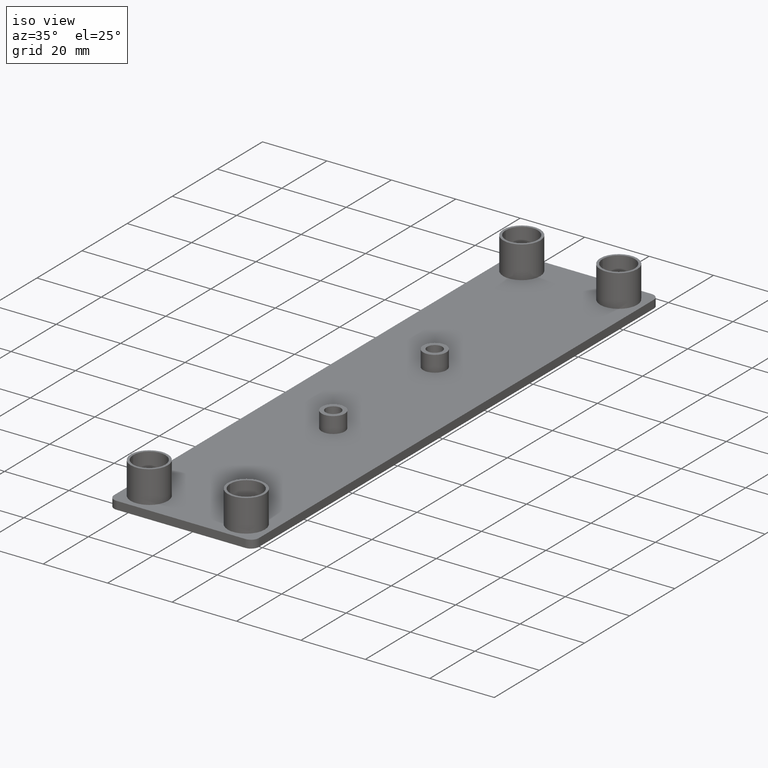
[diagram: clean part render]
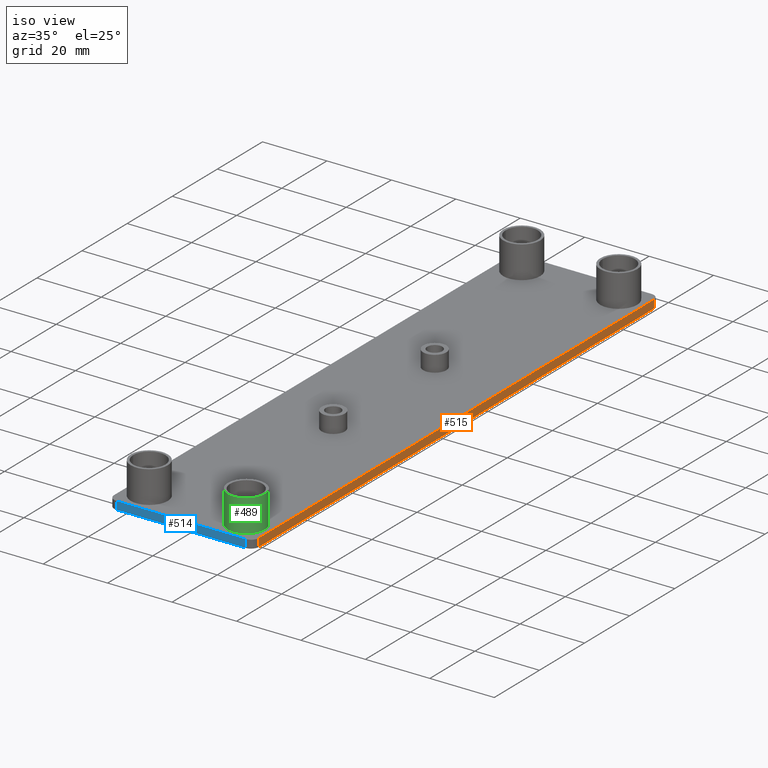
[diagram: same view with three faces highlighted in distinct colors, each labeled with its STEP entity id]
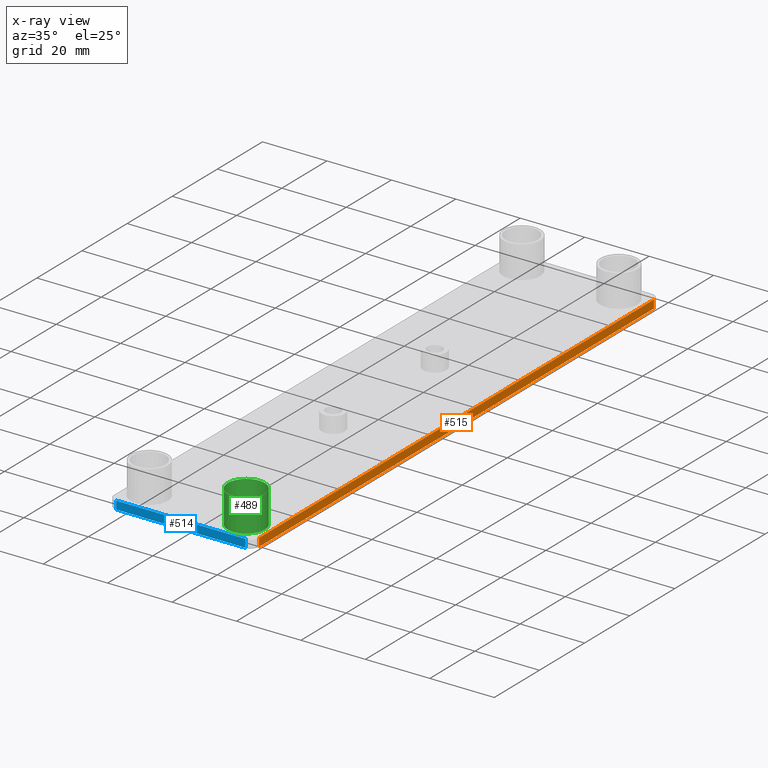
[diagram: x-ray of the same camera — body ghosted, the three highlighted faces saturated]
A machine part, iso view with three faces highlighted in distinct colors.
The next image is the same camera in x-ray (body ghosted, the three faces saturated) — at least one of them is partly hidden behind the body in this view.
Their STEP definitions:

[orange] entity #515 — the highlighted planar face has unit normal (-1, 0, 0).
#38=LINE('',#858,#66);
#47=LINE('',#888,#75);
#49=LINE('',#892,#77);
#52=LINE('',#897,#80);
#66=VECTOR('',#720,175.00000099928);
#75=VECTOR('',#745,175.00000099928);
#77=VECTOR('',#751,2.5);
#80=VECTOR('',#758,2.5);
#130=FACE_OUTER_BOUND('',#176,.T.);
#176=EDGE_LOOP('',(#422,#423,#424,#425));
#235=VERTEX_POINT('',#855);
#236=VERTEX_POINT('',#857);
#248=VERTEX_POINT('',#885);
#249=VERTEX_POINT('',#887);
#287=EDGE_CURVE('',#236,#235,#38,.T.);
#302=EDGE_CURVE('',#248,#249,#47,.T.);
#305=EDGE_CURVE('',#248,#236,#49,.T.);
#308=EDGE_CURVE('',#249,#235,#52,.T.);
#422=ORIENTED_EDGE('',*,*,#302,.F.);
#423=ORIENTED_EDGE('',*,*,#305,.T.);
#424=ORIENTED_EDGE('',*,*,#287,.T.);
#425=ORIENTED_EDGE('',*,*,#308,.F.);
#446=PLANE('',#604);
#515=ADVANCED_FACE('',(#130),#446,.F.);
#604=AXIS2_PLACEMENT_3D('',#901,#764,#765);
#720=DIRECTION('',(0.,1.,0.));
#745=DIRECTION('',(0.,1.,0.));
#751=DIRECTION('',(0.,0.,-1.));
#758=DIRECTION('',(0.,0.,-1.));
#764=DIRECTION('center_axis',(-1.,0.,0.));
#765=DIRECTION('ref_axis',(0.,0.,1.));
#855=CARTESIAN_POINT('',(22.4999799999136,109.99999999955,-2.5));
#857=CARTESIAN_POINT('',(22.4999799999136,-65.0000009997302,-2.5));
#858=CARTESIAN_POINT('',(22.4999799999136,-65.0000009997302,-2.5));
#885=CARTESIAN_POINT('',(22.4999799999136,-65.0000009997302,0.));
#887=CARTESIAN_POINT('',(22.4999799999136,109.99999999955,0.));
#888=CARTESIAN_POINT('',(22.4999799999136,-65.0000009997302,0.));
#892=CARTESIAN_POINT('',(22.4999799999136,-65.0000009997302,0.));
#897=CARTESIAN_POINT('',(22.4999799999136,109.99999999955,0.));
#901=CARTESIAN_POINT('Origin',(22.4999799999136,-67.5000009997302,0.));

[blue] entity #514 — the highlighted planar face has unit normal (0, 1, 0).
#39=LINE('',#862,#67);
#43=LINE('',#875,#71);
#46=LINE('',#884,#74);
#48=LINE('',#891,#76);
#67=VECTOR('',#723,39.9999539998198);
#71=VECTOR('',#735,2.5);
#74=VECTOR('',#742,39.9999539998198);
#76=VECTOR('',#750,2.5);
#129=FACE_OUTER_BOUND('',#175,.T.);
#175=EDGE_LOOP('',(#418,#419,#420,#421));
#237=VERTEX_POINT('',#859);
#238=VERTEX_POINT('',#861);
#242=VERTEX_POINT('',#871);
#247=VERTEX_POINT('',#883);
#289=EDGE_CURVE('',#238,#237,#39,.T.);
#296=EDGE_CURVE('',#242,#238,#43,.T.);
#300=EDGE_CURVE('',#242,#247,#46,.T.);
#304=EDGE_CURVE('',#247,#237,#48,.T.);
#418=ORIENTED_EDGE('',*,*,#300,.F.);
#419=ORIENTED_EDGE('',*,*,#296,.T.);
#420=ORIENTED_EDGE('',*,*,#289,.T.);
#421=ORIENTED_EDGE('',*,*,#304,.F.);
#445=PLANE('',#603);
#514=ADVANCED_FACE('',(#129),#445,.F.);
#603=AXIS2_PLACEMENT_3D('',#900,#762,#763);
#723=DIRECTION('',(1.,0.,0.));
#735=DIRECTION('',(0.,0.,-1.));
#742=DIRECTION('',(1.,0.,0.));
#750=DIRECTION('',(0.,0.,-1.));
#762=DIRECTION('center_axis',(0.,1.,0.));
#763=DIRECTION('ref_axis',(0.,0.,1.));
#859=CARTESIAN_POINT('',(19.9999799999136,-67.5000009997302,-2.5));
#861=CARTESIAN_POINT('',(-19.9999739999062,-67.5000009997302,-2.5));
#862=CARTESIAN_POINT('',(-19.9999739999062,-67.5000009997302,-2.5));
#871=CARTESIAN_POINT('',(-19.9999739999062,-67.5000009997302,0.));
#875=CARTESIAN_POINT('',(-19.9999739999062,-67.5000009997302,0.));
#883=CARTESIAN_POINT('',(19.9999799999136,-67.5000009997302,0.));
#884=CARTESIAN_POINT('',(-19.9999739999062,-67.5000009997302,0.));
#891=CARTESIAN_POINT('',(19.9999799999136,-67.5000009997302,0.));
#900=CARTESIAN_POINT('Origin',(-22.4999739999062,-67.5000009997302,0.));

[green] entity #489 — the highlighted cylindrical surface (bore or boss wall) has radius 5.75 mm, axis along (0, 0, 1).
#26=LINE('',#791,#54);
#54=VECTOR('',#636,5.749999999977);
#82=CYLINDRICAL_SURFACE('',#552,5.749999999977);
#104=FACE_OUTER_BOUND('',#138,.T.);
#138=EDGE_LOOP('',(#316,#317,#318,#319));
#184=CIRCLE('',#553,5.749999999977);
#185=CIRCLE('',#554,5.749999999977);
#216=VERTEX_POINT('',#788);
#217=VERTEX_POINT('',#790);
#256=EDGE_CURVE('',#216,#216,#184,.T.);
#257=EDGE_CURVE('',#216,#217,#26,.T.);
#258=EDGE_CURVE('',#217,#217,#185,.T.);
#316=ORIENTED_EDGE('',*,*,#256,.F.);
#317=ORIENTED_EDGE('',*,*,#257,.T.);
#318=ORIENTED_EDGE('',*,*,#258,.T.);
#319=ORIENTED_EDGE('',*,*,#257,.F.);
#489=ADVANCED_FACE('',(#104),#82,.T.);
#552=AXIS2_PLACEMENT_3D('',#787,#632,#633);
#553=AXIS2_PLACEMENT_3D('',#789,#634,#635);
#554=AXIS2_PLACEMENT_3D('',#792,#637,#638);
#632=DIRECTION('center_axis',(0.,0.,1.));
#633=DIRECTION('ref_axis',(1.,0.,0.));
#634=DIRECTION('center_axis',(0.,0.,1.));
#635=DIRECTION('ref_axis',(1.,0.,0.));
#636=DIRECTION('',(0.,0.,-1.));
#637=DIRECTION('center_axis',(0.,0.,1.));
#638=DIRECTION('ref_axis',(1.,0.,0.));
#787=CARTESIAN_POINT('Origin',(15.0499809999437,-60.0500449997599,0.));
#788=CARTESIAN_POINT('',(9.29998099996673,-60.0500449997599,10.));
#789=CARTESIAN_POINT('Origin',(15.0499809999437,-60.0500449997599,10.));
#790=CARTESIAN_POINT('',(9.29998099996673,-60.0500449997599,0.));
#791=CARTESIAN_POINT('',(9.29998099996673,-60.0500449997599,0.));
#792=CARTESIAN_POINT('Origin',(15.0499809999437,-60.0500449997599,0.));